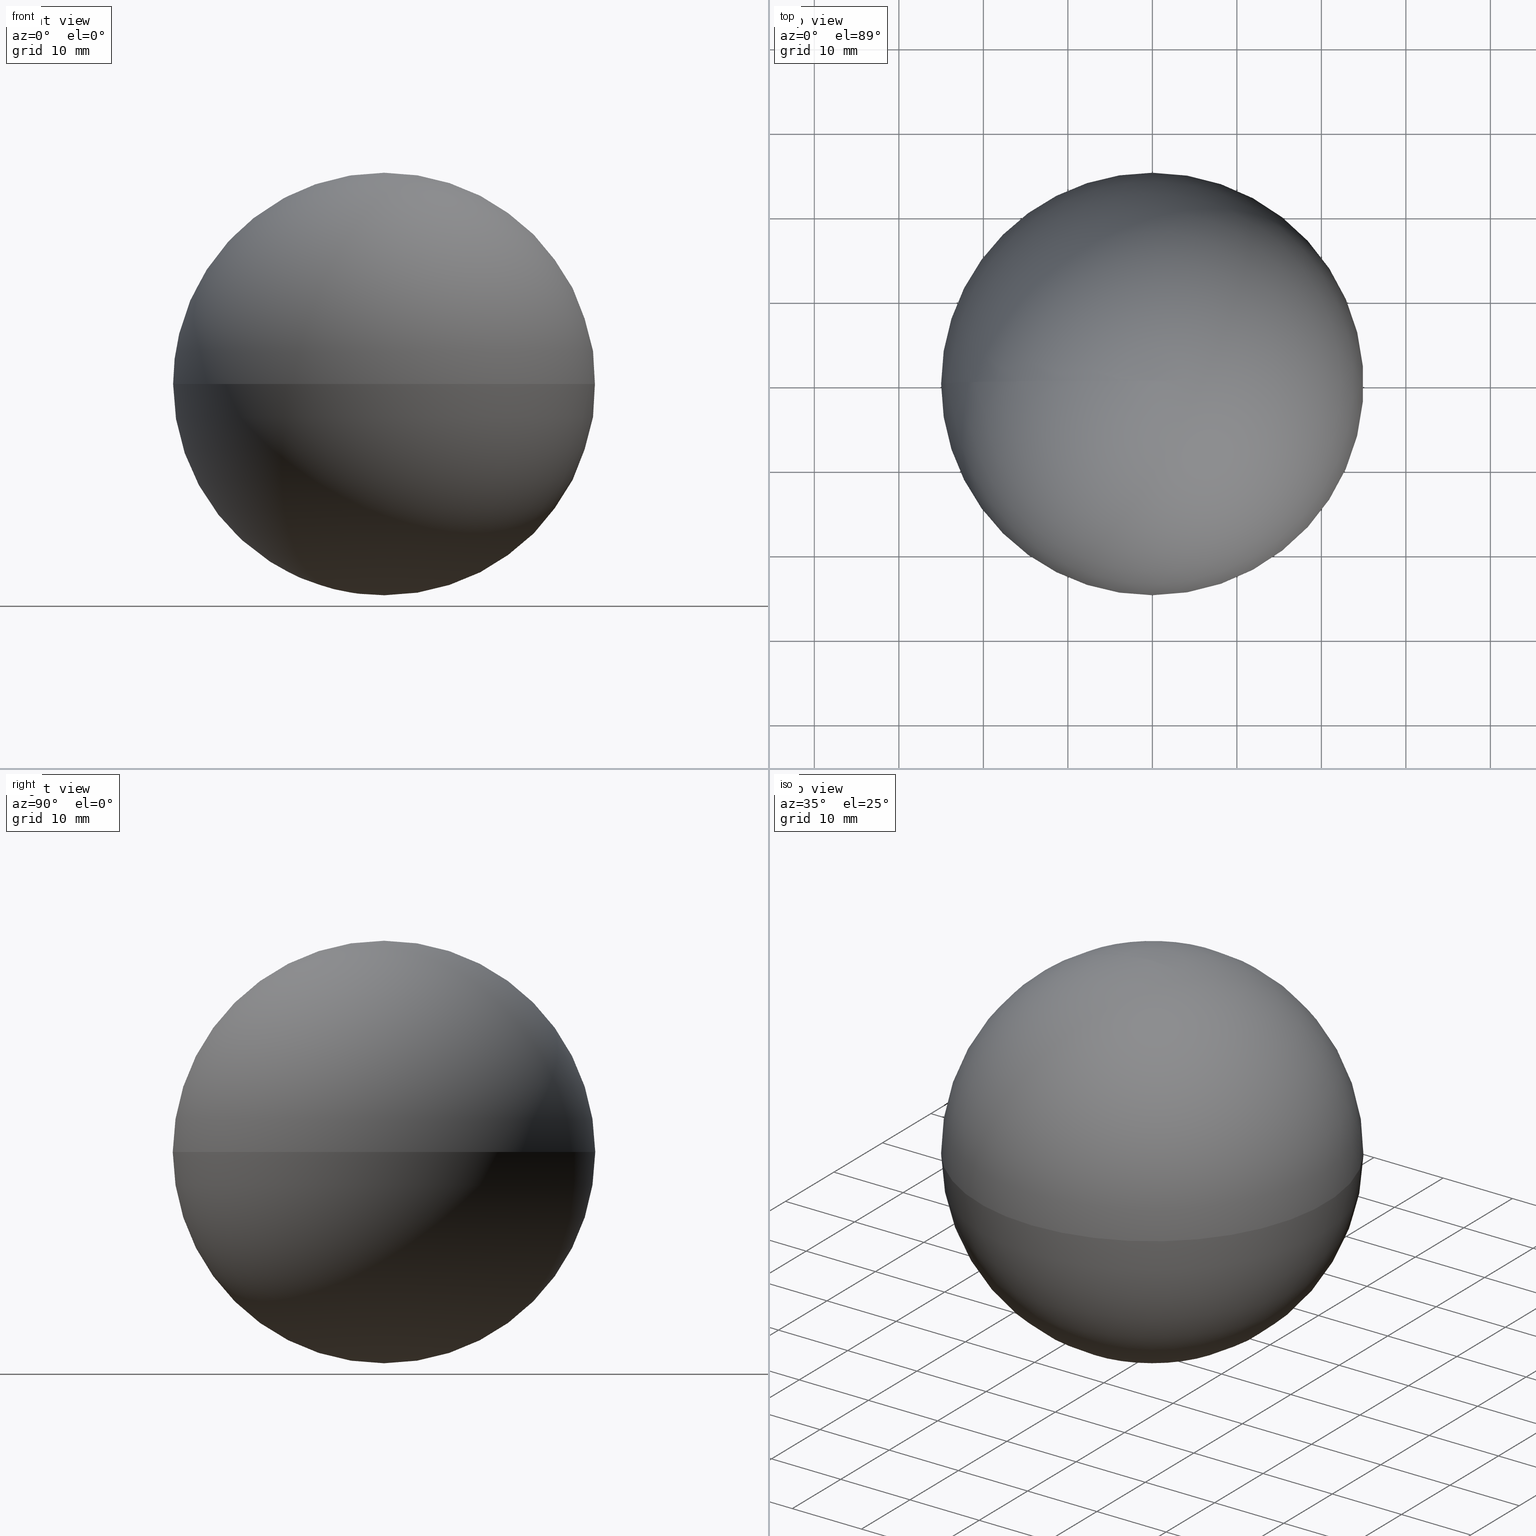
[diagram: canonical four-view strip — front | top / right | iso, engineering-drawing reading convention]
A machine part, canonical four-view strip (front | top / right | iso — engineering-drawing reading convention). The complete STEP part file that produces these views, byte-faithful:
ISO-10303-21;
HEADER;
FILE_DESCRIPTION (( 'STEP AP203' ),
    '1' );
FILE_NAME ('3576.step',
    '2015-09-17T14:57:04',
    ( '' ),
    ( '' ),
    'SwSTEP 2.0',
    'SolidWorks 2015',
    '' );
FILE_SCHEMA (( 'CONFIG_CONTROL_DESIGN' ));
ENDSEC;

DATA;
#1 = SHAPE_DEFINITION_REPRESENTATION ( #12, #58 ) ;
#2 = VERTEX_POINT ( 'NONE', #25 ) ;
#3 = PERSON ( 'UNSPECIFIED', 'UNSPECIFIED', 'UNSPECIFIED', ('UNSPECIFIED'), ('UNSPECIFIED'), ('UNSPECIFIED') ) ;
#4 = DESIGN_CONTEXT ( 'detailed design', #69, 'design' ) ;
#5 = APPROVAL_DATE_TIME ( #7, #9 ) ;
#6 = CC_DESIGN_SECURITY_CLASSIFICATION ( #109, ( #43 ) ) ;
#7 = DATE_AND_TIME ( #106, #101 ) ;
#8 = EDGE_CURVE ( 'NONE', #2, #72, #99, .T. ) ;
#9 = APPROVAL ( #73, 'UNSPECIFIED' ) ;
#10 = AXIS2_PLACEMENT_3D ( 'NONE', #100, #123, #118 ) ;
#11 =( GEOMETRIC_REPRESENTATION_CONTEXT ( 3 ) GLOBAL_UNCERTAINTY_ASSIGNED_CONTEXT ( ( #42 ) ) GLOBAL_UNIT_ASSIGNED_CONTEXT ( ( #97, #88, #87 ) ) REPRESENTATION_CONTEXT ( 'NONE', 'WORKASPACE' ) );
#12 = PRODUCT_DEFINITION_SHAPE ( 'NONE', 'NONE',  #13 ) ;
#13 = PRODUCT_DEFINITION ( 'UNKNOWN', '', #43, #4 ) ;
#14 = APPROVAL ( #65, 'UNSPECIFIED' ) ;
#15 = PRODUCT ( '3576', '3576', '', ( #75 ) ) ;
#16 = PRODUCT_RELATED_PRODUCT_CATEGORY ( 'detail', '', ( #15 ) ) ;
#17 = CC_DESIGN_APPROVAL ( #14, ( #13 ) ) ;
#18 = CC_DESIGN_PERSON_AND_ORGANIZATION_ASSIGNMENT ( #119, #62, ( #13 ) ) ;
#19 = COORDINATED_UNIVERSAL_TIME_OFFSET ( 1, 0, .AHEAD. ) ;
#20 = CC_DESIGN_PERSON_AND_ORGANIZATION_ASSIGNMENT ( #56, #74, ( #15 ) ) ;
#21 = EDGE_CURVE ( 'NONE', #2, #72, #41, .T. ) ;
#22 = APPROVAL_PERSON_ORGANIZATION ( #26, #9, #85 ) ;
#23 = AXIS2_PLACEMENT_3D ( 'NONE', #112, #68, #104 ) ;
#24 = CALENDAR_DATE ( 2015, 17, 9 ) ;
#25 = CARTESIAN_POINT ( 'NONE',  ( -1.530808498934191500E-015, 25.00000000000000000, 0.0000000000000000000 ) ) ;
#26 = PERSON_AND_ORGANIZATION ( #3, #111 ) ;
#27 = DATE_TIME_ROLE ( 'classification_date' ) ;
#28 = COORDINATED_UNIVERSAL_TIME_OFFSET ( 1, 0, .AHEAD. ) ;
#29 = PERSON_AND_ORGANIZATION ( #3, #111 ) ;
#30 = PERSON_AND_ORGANIZATION ( #3, #111 ) ;
#31 = COORDINATED_UNIVERSAL_TIME_OFFSET ( 1, 0, .AHEAD. ) ;
#32 = CALENDAR_DATE ( 2015, 17, 9 ) ;
#33 = DATE_AND_TIME ( #32, #125 ) ;
#34 = ORIENTED_EDGE ( 'NONE', *, *, #8, .F. ) ;
#35 = APPROVAL_PERSON_ORGANIZATION ( #36, #14, #63 ) ;
#36 = PERSON_AND_ORGANIZATION ( #3, #111 ) ;
#37 = CC_DESIGN_DATE_AND_TIME_ASSIGNMENT ( #84, #27, ( #109 ) ) ;
#38 = PERSON_AND_ORGANIZATION ( #3, #111 ) ;
#39 = PERSON_AND_ORGANIZATION_ROLE ( 'classification_officer' ) ;
#40 = CC_DESIGN_DATE_AND_TIME_ASSIGNMENT ( #103, #57, ( #13 ) ) ;
#41 = CIRCLE ( 'NONE', #114, 25.00000000000000000 ) ;
#42 = UNCERTAINTY_MEASURE_WITH_UNIT (LENGTH_MEASURE( 1.000000000000000100E-005 ), #97, 'distance_accuracy_value', 'NONE');
#43 = PRODUCT_DEFINITION_FORMATION_WITH_SPECIFIED_SOURCE ( 'ANY', '', #15, .NOT_KNOWN. ) ;
#44 = CLOSED_SHELL ( 'NONE', ( #59, #86 ) ) ;
#45 = AXIS2_PLACEMENT_3D ( 'NONE', #113, #94, #76 ) ;
#46 = SECURITY_CLASSIFICATION_LEVEL ( 'unclassified' ) ;
#47 = APPROVAL ( #55, 'UNSPECIFIED' ) ;
#48 = PERSON_AND_ORGANIZATION_ROLE ( 'design_supplier' ) ;
#49 = PERSON_AND_ORGANIZATION_ROLE ( 'creator' ) ;
#50 = MANIFOLD_SOLID_BREP ( 'Rotation1', #44 ) ;
#51 = ORIENTED_EDGE ( 'NONE', *, *, #21, .F. ) ;
#52 = CALENDAR_DATE ( 2015, 17, 9 ) ;
#53 = LOCAL_TIME ( 16, 57, 4.000000000000000000, #64 ) ;
#54 = APPROVAL_ROLE ( '' ) ;
#55 = APPROVAL_STATUS ( 'not_yet_approved' ) ;
#56 = PERSON_AND_ORGANIZATION ( #3, #111 ) ;
#57 = DATE_TIME_ROLE ( 'creation_date' ) ;
#58 = ADVANCED_BREP_SHAPE_REPRESENTATION ( '3576', ( #50, #45 ), #11 ) ;
#59 = ADVANCED_FACE ( 'NONE', ( #66 ), #82, .T. ) ;
#60 = EDGE_LOOP ( 'NONE', ( #51, #92 ) ) ;
#61 = CC_DESIGN_APPROVAL ( #9, ( #109 ) ) ;
#62 = PERSON_AND_ORGANIZATION_ROLE ( 'creator' ) ;
#63 = APPROVAL_ROLE ( '' ) ;
#64 = COORDINATED_UNIVERSAL_TIME_OFFSET ( 1, 0, .AHEAD. ) ;
#65 = APPROVAL_STATUS ( 'not_yet_approved' ) ;
#66 = FACE_OUTER_BOUND ( 'NONE', #79, .T. ) ;
#67 = APPLICATION_PROTOCOL_DEFINITION ( 'international standard', 'config_control_design', 1994, #69 ) ;
#68 = DIRECTION ( 'NONE',  ( -0.0000000000000000000, -0.0000000000000000000, -1.000000000000000000 ) ) ;
#69 = APPLICATION_CONTEXT ( 'configuration controlled 3d designs of mechanical parts and assemblies' ) ;
#70 = CC_DESIGN_APPROVAL ( #47, ( #43 ) ) ;
#71 = AXIS2_PLACEMENT_3D ( 'NONE', #98, #96, #95 ) ;
#72 = VERTEX_POINT ( 'NONE', #124 ) ;
#73 = APPROVAL_STATUS ( 'not_yet_approved' ) ;
#74 = PERSON_AND_ORGANIZATION_ROLE ( 'design_owner' ) ;
#75 = MECHANICAL_CONTEXT ( 'NONE', #77, 'mechanical' ) ;
#76 = DIRECTION ( 'NONE',  ( 1.000000000000000000, 0.0000000000000000000, 0.0000000000000000000 ) ) ;
#77 = APPLICATION_CONTEXT ( 'configuration controlled 3d designs of mechanical parts and assemblies' ) ;
#78 = APPROVAL_DATE_TIME ( #33, #47 ) ;
#79 = EDGE_LOOP ( 'NONE', ( #34, #116 ) ) ;
#80 = APPLICATION_PROTOCOL_DEFINITION ( 'international standard', 'config_control_design', 1994, #77 ) ;
#81 = CC_DESIGN_PERSON_AND_ORGANIZATION_ASSIGNMENT ( #38, #49, ( #43 ) ) ;
#82 = SPHERICAL_SURFACE ( 'NONE', #23, 25.00000000000000000 ) ;
#83 = APPROVAL_PERSON_ORGANIZATION ( #102, #47, #54 ) ;
#84 = DATE_AND_TIME ( #91, #89 ) ;
#85 = APPROVAL_ROLE ( '' ) ;
#86 = ADVANCED_FACE ( 'NONE', ( #115 ), #90, .T. ) ;
#87 =( NAMED_UNIT ( * ) SI_UNIT ( $, .STERADIAN. ) SOLID_ANGLE_UNIT ( ) );
#88 =( NAMED_UNIT ( * ) PLANE_ANGLE_UNIT ( ) SI_UNIT ( $, .RADIAN. ) );
#89 = LOCAL_TIME ( 16, 57, 4.000000000000000000, #28 ) ;
#90 = SPHERICAL_SURFACE ( 'NONE', #71, 25.00000000000000000 ) ;
#91 = CALENDAR_DATE ( 2015, 17, 9 ) ;
#92 = ORIENTED_EDGE ( 'NONE', *, *, #8, .T. ) ;
#93 = CC_DESIGN_PERSON_AND_ORGANIZATION_ASSIGNMENT ( #30, #48, ( #43 ) ) ;
#94 = DIRECTION ( 'NONE',  ( 0.0000000000000000000, 0.0000000000000000000, 1.000000000000000000 ) ) ;
#95 = DIRECTION ( 'NONE',  ( -1.000000000000000000, 0.0000000000000000000, 0.0000000000000000000 ) ) ;
#96 = DIRECTION ( 'NONE',  ( -0.0000000000000000000, -0.0000000000000000000, -1.000000000000000000 ) ) ;
#97 =( LENGTH_UNIT ( ) NAMED_UNIT ( * ) SI_UNIT ( .MILLI., .METRE. ) );
#98 = CARTESIAN_POINT ( 'NONE',  ( 0.0000000000000000000, 0.0000000000000000000, 0.0000000000000000000 ) ) ;
#99 = CIRCLE ( 'NONE', #10, 25.00000000000000000 ) ;
#100 = CARTESIAN_POINT ( 'NONE',  ( 0.0000000000000000000, 0.0000000000000000000, 0.0000000000000000000 ) ) ;
#101 = LOCAL_TIME ( 16, 57, 4.000000000000000000, #19 ) ;
#102 = PERSON_AND_ORGANIZATION ( #3, #111 ) ;
#103 = DATE_AND_TIME ( #24, #122 ) ;
#104 = DIRECTION ( 'NONE',  ( -1.000000000000000000, 0.0000000000000000000, 0.0000000000000000000 ) ) ;
#105 = DIRECTION ( 'NONE',  ( -1.000000000000000000, 0.0000000000000000000, 1.224646799147353200E-016 ) ) ;
#106 = CALENDAR_DATE ( 2015, 17, 9 ) ;
#107 = DIRECTION ( 'NONE',  ( -1.224646799147353200E-016, 0.0000000000000000000, -1.000000000000000000 ) ) ;
#108 = CARTESIAN_POINT ( 'NONE',  ( 0.0000000000000000000, 0.0000000000000000000, 0.0000000000000000000 ) ) ;
#109 = SECURITY_CLASSIFICATION ( '', '', #46 ) ;
#110 = DATE_AND_TIME ( #52, #53 ) ;
#111 = ORGANIZATION ( 'UNSPECIFIED', 'UNSPECIFIED', '' ) ;
#112 = CARTESIAN_POINT ( 'NONE',  ( 0.0000000000000000000, 0.0000000000000000000, 0.0000000000000000000 ) ) ;
#113 = CARTESIAN_POINT ( 'NONE',  ( 0.0000000000000000000, 0.0000000000000000000, 0.0000000000000000000 ) ) ;
#114 = AXIS2_PLACEMENT_3D ( 'NONE', #108, #107, #105 ) ;
#115 = FACE_OUTER_BOUND ( 'NONE', #60, .T. ) ;
#116 = ORIENTED_EDGE ( 'NONE', *, *, #21, .T. ) ;
#117 = APPROVAL_DATE_TIME ( #110, #14 ) ;
#118 = DIRECTION ( 'NONE',  ( 1.000000000000000000, 0.0000000000000000000, 0.0000000000000000000 ) ) ;
#119 = PERSON_AND_ORGANIZATION ( #3, #111 ) ;
#120 = CC_DESIGN_PERSON_AND_ORGANIZATION_ASSIGNMENT ( #29, #39, ( #109 ) ) ;
#121 = COORDINATED_UNIVERSAL_TIME_OFFSET ( 1, 0, .AHEAD. ) ;
#122 = LOCAL_TIME ( 16, 57, 4.000000000000000000, #121 ) ;
#123 = DIRECTION ( 'NONE',  ( -0.0000000000000000000, 0.0000000000000000000, 1.000000000000000000 ) ) ;
#124 = CARTESIAN_POINT ( 'NONE',  ( -1.530808498934191500E-015, -25.00000000000000000, 0.0000000000000000000 ) ) ;
#125 = LOCAL_TIME ( 16, 57, 4.000000000000000000, #31 ) ;
ENDSEC;
END-ISO-10303-21;
